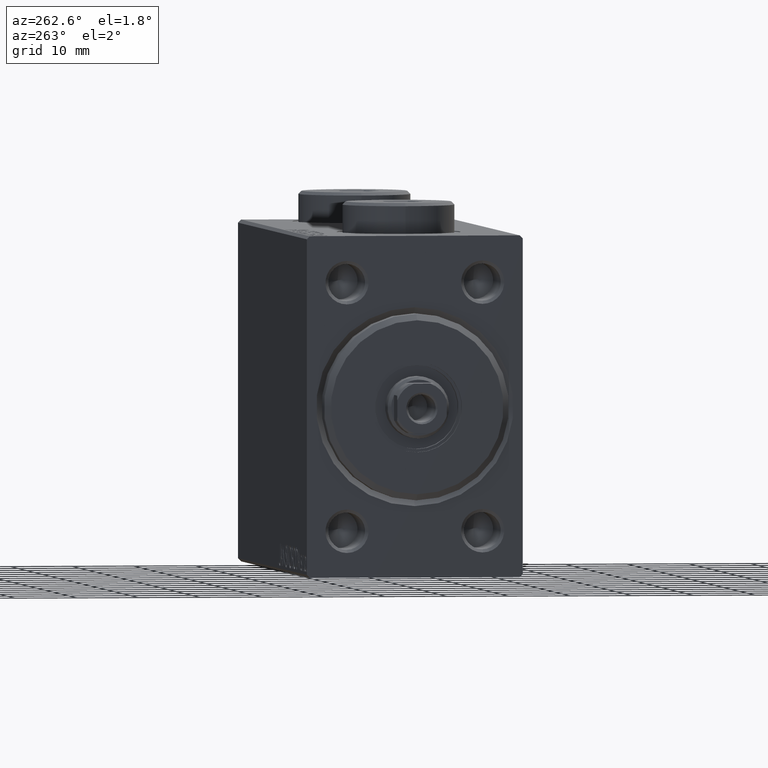
[diagram: clean part render]
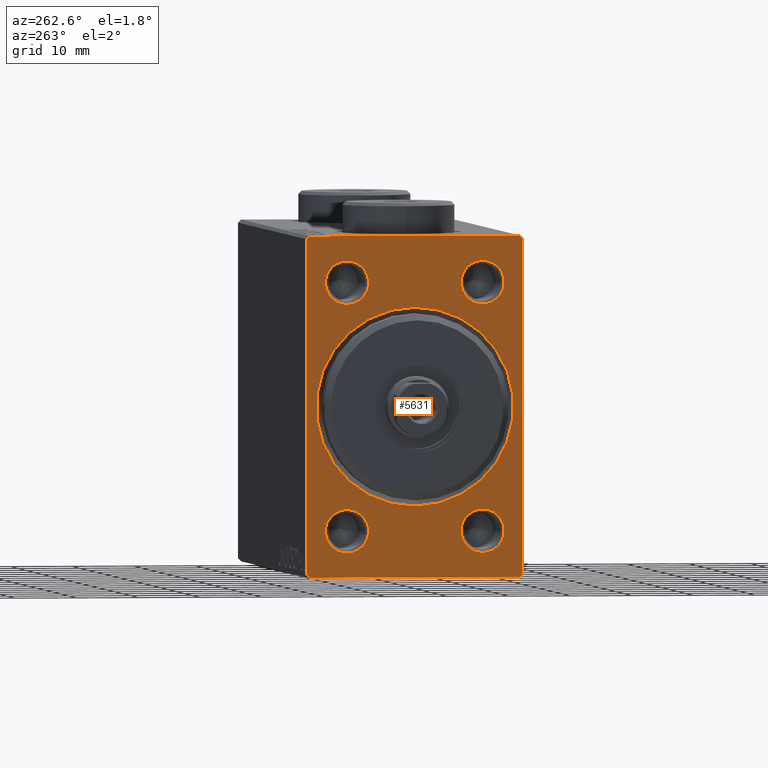
[diagram: same view with one face highlighted and labeled with its STEP entity id]
A machine part, auxiliary view. The second image highlights one B-rep face of the part: STEP entity #5631.
In plain terms, the highlighted planar face has unit normal (1, 0, 0).
Its self-contained STEP definition (entity closure, byte-faithful):
#11 = VECTOR ( 'NONE', #37102, 1000.000000000000114 ) ;
#359 = CARTESIAN_POINT ( 'NONE',  ( 0.000000000000000000, 16.99999999999999289, -27.50000000000001066 ) ) ;
#646 = EDGE_CURVE ( 'NONE', #43901, #34689, #13228, .T. ) ;
#683 = DIRECTION ( 'NONE',  ( 1.000000000000000000, 0.000000000000000000, 0.000000000000000000 ) ) ;
#1106 = ORIENTED_EDGE ( 'NONE', *, *, #14245, .T. ) ;
#1119 = DIRECTION ( 'NONE',  ( -0.000000000000000000, -0.7071067811865474617, 0.7071067811865474617 ) ) ;
#2236 = DIRECTION ( 'NONE',  ( 0.000000000000000000, 0.000000000000000000, -1.000000000000000000 ) ) ;
#2260 = VECTOR ( 'NONE', #13342, 1000.000000000000000 ) ;
#2448 = AXIS2_PLACEMENT_3D ( 'NONE', #16591, #30635, #2755 ) ;
#2755 = DIRECTION ( 'NONE',  ( 0.000000000000000000, 0.000000000000000000, -1.000000000000000000 ) ) ;
#3011 = CIRCLE ( 'NONE', #30243, 3.500000000000003109 ) ;
#3281 = EDGE_CURVE ( 'NONE', #16516, #6691, #12670, .T. ) ;
#3431 = ORIENTED_EDGE ( 'NONE', *, *, #20932, .T. ) ;
#3784 = DIRECTION ( 'NONE',  ( 0.000000000000000000, 0.000000000000000000, -1.000000000000000000 ) ) ;
#3795 = VECTOR ( 'NONE', #1119, 1000.000000000000114 ) ;
#4059 = EDGE_CURVE ( 'NONE', #37558, #14920, #3011, .T. ) ;
#4092 = ORIENTED_EDGE ( 'NONE', *, *, #3281, .F. ) ;
#4200 = DIRECTION ( 'NONE',  ( 0.000000000000000000, -1.000000000000000000, -1.982541115402065356E-16 ) ) ;
#4403 = ORIENTED_EDGE ( 'NONE', *, *, #23077, .T. ) ;
#4577 = CARTESIAN_POINT ( 'NONE',  ( 0.000000000000000000, -16.99999999999997868, -27.50000000000000711 ) ) ;
#5053 = EDGE_CURVE ( 'NONE', #34689, #43901, #6006, .T. ) ;
#5509 = VECTOR ( 'NONE', #4200, 1000.000000000000000 ) ;
#5631 = ADVANCED_FACE ( 'NONE', ( #6506, #20802, #37590, #44945, #13448, #27269 ), #24258, .F. ) ;
#6006 = CIRCLE ( 'NONE', #28092, 3.500000000000003109 ) ;
#6305 = DIRECTION ( 'NONE',  ( 0.000000000000000000, 0.000000000000000000, -1.000000000000000000 ) ) ;
#6440 = EDGE_CURVE ( 'NONE', #15381, #44623, #34680, .T. ) ;
#6506 = FACE_BOUND ( 'NONE', #21857, .T. ) ;
#6691 = VERTEX_POINT ( 'NONE', #43993 ) ;
#6898 = VERTEX_POINT ( 'NONE', #9403 ) ;
#7950 = AXIS2_PLACEMENT_3D ( 'NONE', #36327, #19753, #2236 ) ;
#8102 = CARTESIAN_POINT ( 'NONE',  ( 0.000000000000000000, -17.49999999999999645, 27.49999999999998579 ) ) ;
#8302 = DIRECTION ( 'NONE',  ( -0.000000000000000000, 0.7071067811865474617, 0.7071067811865474617 ) ) ;
#8775 = CARTESIAN_POINT ( 'NONE',  ( 0.000000000000000000, -11.00000000000000533, 16.50000000000000355 ) ) ;
#8803 = AXIS2_PLACEMENT_3D ( 'NONE', #12560, #23153, #6305 ) ;
#8944 = EDGE_CURVE ( 'NONE', #25537, #20317, #22101, .T. ) ;
#9030 = LINE ( 'NONE', #23099, #11 ) ;
#9089 = ORIENTED_EDGE ( 'NONE', *, *, #25800, .T. ) ;
#9403 = CARTESIAN_POINT ( 'NONE',  ( 0.000000000000000000, -16.99999999999997868, 27.49999999999998579 ) ) ;
#10078 = AXIS2_PLACEMENT_3D ( 'NONE', #20118, #34128, #13661 ) ;
#10892 = LINE ( 'NONE', #25412, #5509 ) ;
#10898 = VERTEX_POINT ( 'NONE', #11928 ) ;
#11023 = CARTESIAN_POINT ( 'NONE',  ( 0.000000000000000000, -17.49999999999999645, 26.99999999999997158 ) ) ;
#11344 = DIRECTION ( 'NONE',  ( 0.000000000000000000, 1.000000000000000000, -9.912705577010325549E-17 ) ) ;
#11368 = EDGE_CURVE ( 'NONE', #30935, #6691, #18489, .T. ) ;
#11392 = DIRECTION ( 'NONE',  ( 1.000000000000000000, 0.000000000000000000, 0.000000000000000000 ) ) ;
#11405 = EDGE_CURVE ( 'NONE', #25537, #18526, #29560, .T. ) ;
#11504 = CIRCLE ( 'NONE', #21029, 3.500000000000003109 ) ;
#11928 = CARTESIAN_POINT ( 'NONE',  ( 0.000000000000000000, 11.00000000000000178, 16.50000000000000355 ) ) ;
#12036 = VERTEX_POINT ( 'NONE', #31348 ) ;
#12500 = CIRCLE ( 'NONE', #8803, 16.00000000000000000 ) ;
#12560 = CARTESIAN_POINT ( 'NONE',  ( 0.000000000000000000, 0.000000000000000000, 0.000000000000000000 ) ) ;
#12670 = LINE ( 'NONE', #30163, #2260 ) ;
#13228 = CIRCLE ( 'NONE', #15484, 3.500000000000003109 ) ;
#13342 = DIRECTION ( 'NONE',  ( 0.000000000000000000, -1.261617073437677752E-16, 1.000000000000000000 ) ) ;
#13448 = FACE_BOUND ( 'NONE', #24237, .T. ) ;
#13548 = EDGE_LOOP ( 'NONE', ( #4403, #40969 ) ) ;
#13559 = ORIENTED_EDGE ( 'NONE', *, *, #17268, .F. ) ;
#13661 = DIRECTION ( 'NONE',  ( 0.000000000000000000, 0.000000000000000000, -1.000000000000000000 ) ) ;
#14245 = EDGE_CURVE ( 'NONE', #28995, #17581, #16437, .T. ) ;
#14920 = VERTEX_POINT ( 'NONE', #35137 ) ;
#14982 = CARTESIAN_POINT ( 'NONE',  ( 0.000000000000000000, 11.00000000000000178, -20.00000000000000000 ) ) ;
#15381 = VERTEX_POINT ( 'NONE', #16434 ) ;
#15484 = AXIS2_PLACEMENT_3D ( 'NONE', #42908, #11392, #45450 ) ;
#15514 = DIRECTION ( 'NONE',  ( 0.000000000000000000, 0.000000000000000000, -1.000000000000000000 ) ) ;
#15671 = ORIENTED_EDGE ( 'NONE', *, *, #646, .T. ) ;
#15683 = VECTOR ( 'NONE', #11344, 1000.000000000000000 ) ;
#15787 = ORIENTED_EDGE ( 'NONE', *, *, #11368, .T. ) ;
#16138 = CARTESIAN_POINT ( 'NONE',  ( 0.000000000000000000, -17.49999999999999645, 26.99999999999997158 ) ) ;
#16202 = CARTESIAN_POINT ( 'NONE',  ( 0.000000000000000000, 0.000000000000000000, 16.00000000000000000 ) ) ;
#16377 = VECTOR ( 'NONE', #32296, 1000.000000000000114 ) ;
#16434 = CARTESIAN_POINT ( 'NONE',  ( 0.000000000000000000, 1.959434878635765131E-15, -16.00000000000000000 ) ) ;
#16437 = CIRCLE ( 'NONE', #2448, 3.500000000000003109 ) ;
#16516 = VERTEX_POINT ( 'NONE', #19830 ) ;
#16591 = CARTESIAN_POINT ( 'NONE',  ( 0.000000000000000000, -11.00000000000000533, -20.00000000000000000 ) ) ;
#16710 = CIRCLE ( 'NONE', #10078, 3.500000000000003109 ) ;
#17039 = DIRECTION ( 'NONE',  ( 1.000000000000000000, 0.000000000000000000, 0.000000000000000000 ) ) ;
#17130 = EDGE_CURVE ( 'NONE', #30935, #6898, #10892, .T. ) ;
#17268 = EDGE_CURVE ( 'NONE', #26027, #20317, #39640, .T. ) ;
#17581 = VERTEX_POINT ( 'NONE', #26663 ) ;
#18302 = CARTESIAN_POINT ( 'NONE',  ( 0.000000000000000000, 11.00000000000000178, -20.00000000000000000 ) ) ;
#18489 = LINE ( 'NONE', #25185, #16377 ) ;
#18526 = VERTEX_POINT ( 'NONE', #359 ) ;
#19253 = ORIENTED_EDGE ( 'NONE', *, *, #5053, .T. ) ;
#19753 = DIRECTION ( 'NONE',  ( 1.000000000000000000, 0.000000000000000000, 0.000000000000000000 ) ) ;
#19830 = CARTESIAN_POINT ( 'NONE',  ( 0.000000000000000000, 17.50000000000000711, -26.99999999999999645 ) ) ;
#20118 = CARTESIAN_POINT ( 'NONE',  ( 0.000000000000000000, -11.00000000000000533, -20.00000000000000000 ) ) ;
#20310 = CARTESIAN_POINT ( 'NONE',  ( 0.000000000000000000, -16.99999999999997868, -27.50000000000000711 ) ) ;
#20317 = VERTEX_POINT ( 'NONE', #24414 ) ;
#20802 = FACE_BOUND ( 'NONE', #25995, .T. ) ;
#20932 = EDGE_CURVE ( 'NONE', #14920, #37558, #11504, .T. ) ;
#21029 = AXIS2_PLACEMENT_3D ( 'NONE', #18302, #45448, #3784 ) ;
#21857 = EDGE_LOOP ( 'NONE', ( #27988, #23454 ) ) ;
#22101 = LINE ( 'NONE', #4577, #3795 ) ;
#22955 = CARTESIAN_POINT ( 'NONE',  ( 0.000000000000000000, 11.00000000000000178, -16.49999999999999645 ) ) ;
#23077 = EDGE_CURVE ( 'NONE', #12036, #10898, #40167, .T. ) ;
#23099 = CARTESIAN_POINT ( 'NONE',  ( 0.000000000000000000, 17.50000000000000711, -26.99999999999999645 ) ) ;
#23153 = DIRECTION ( 'NONE',  ( 1.000000000000000000, 0.000000000000000000, 0.000000000000000000 ) ) ;
#23201 = CARTESIAN_POINT ( 'NONE',  ( 0.000000000000000000, -11.00000000000000533, -23.50000000000000355 ) ) ;
#23454 = ORIENTED_EDGE ( 'NONE', *, *, #6440, .T. ) ;
#23803 = DIRECTION ( 'NONE',  ( 1.000000000000000000, 0.000000000000000000, 0.000000000000000000 ) ) ;
#23945 = CARTESIAN_POINT ( 'NONE',  ( 0.000000000000000000, 11.00000000000000178, 20.00000000000000711 ) ) ;
#24237 = EDGE_LOOP ( 'NONE', ( #41452, #3431 ) ) ;
#24258 = PLANE ( 'NONE',  #31759 ) ;
#24414 = CARTESIAN_POINT ( 'NONE',  ( 0.000000000000000000, -17.49999999999999645, -26.99999999999999289 ) ) ;
#24634 = EDGE_CURVE ( 'NONE', #17581, #28995, #16710, .T. ) ;
#25119 = DIRECTION ( 'NONE',  ( 0.000000000000000000, 0.000000000000000000, -1.000000000000000000 ) ) ;
#25185 = CARTESIAN_POINT ( 'NONE',  ( 0.000000000000000000, 17.00000000000000000, 27.49999999999999289 ) ) ;
#25412 = CARTESIAN_POINT ( 'NONE',  ( 0.000000000000000000, 17.50000000000000000, 27.49999999999999289 ) ) ;
#25537 = VERTEX_POINT ( 'NONE', #20310 ) ;
#25800 = EDGE_CURVE ( 'NONE', #26027, #6898, #33616, .T. ) ;
#25995 = EDGE_LOOP ( 'NONE', ( #26632, #1106 ) ) ;
#26027 = VERTEX_POINT ( 'NONE', #11023 ) ;
#26632 = ORIENTED_EDGE ( 'NONE', *, *, #24634, .T. ) ;
#26663 = CARTESIAN_POINT ( 'NONE',  ( 0.000000000000000000, -11.00000000000000533, -16.49999999999999645 ) ) ;
#27269 = FACE_OUTER_BOUND ( 'NONE', #40840, .T. ) ;
#27839 = CIRCLE ( 'NONE', #7950, 3.500000000000003109 ) ;
#27988 = ORIENTED_EDGE ( 'NONE', *, *, #41038, .T. ) ;
#28092 = AXIS2_PLACEMENT_3D ( 'NONE', #32697, #683, #29719 ) ;
#28401 = VECTOR ( 'NONE', #8302, 1000.000000000000114 ) ;
#28995 = VERTEX_POINT ( 'NONE', #23201 ) ;
#29560 = LINE ( 'NONE', #33214, #15683 ) ;
#29719 = DIRECTION ( 'NONE',  ( 0.000000000000000000, 0.000000000000000000, -1.000000000000000000 ) ) ;
#30163 = CARTESIAN_POINT ( 'NONE',  ( 0.000000000000000000, 17.50000000000000711, -27.50000000000001066 ) ) ;
#30243 = AXIS2_PLACEMENT_3D ( 'NONE', #14982, #32689, #25119 ) ;
#30514 = ORIENTED_EDGE ( 'NONE', *, *, #11405, .F. ) ;
#30635 = DIRECTION ( 'NONE',  ( 1.000000000000000000, 0.000000000000000000, 0.000000000000000000 ) ) ;
#30719 = CARTESIAN_POINT ( 'NONE',  ( 0.000000000000000000, 0.000000000000000000, 0.000000000000000000 ) ) ;
#30722 = DIRECTION ( 'NONE',  ( 0.000000000000000000, 0.000000000000000000, -1.000000000000000000 ) ) ;
#30935 = VERTEX_POINT ( 'NONE', #35345 ) ;
#30944 = DIRECTION ( 'NONE',  ( 0.000000000000000000, 0.000000000000000000, -1.000000000000000000 ) ) ;
#31348 = CARTESIAN_POINT ( 'NONE',  ( 0.000000000000000000, 11.00000000000000178, 23.50000000000001066 ) ) ;
#31759 = AXIS2_PLACEMENT_3D ( 'NONE', #30719, #37815, #30944 ) ;
#31969 = EDGE_CURVE ( 'NONE', #10898, #12036, #27839, .T. ) ;
#32296 = DIRECTION ( 'NONE',  ( -0.000000000000000000, 0.7071067811865500152, -0.7071067811865451302 ) ) ;
#32455 = EDGE_LOOP ( 'NONE', ( #19253, #15671 ) ) ;
#32512 = AXIS2_PLACEMENT_3D ( 'NONE', #44496, #23803, #30722 ) ;
#32689 = DIRECTION ( 'NONE',  ( 1.000000000000000000, 0.000000000000000000, 0.000000000000000000 ) ) ;
#32697 = CARTESIAN_POINT ( 'NONE',  ( 0.000000000000000000, -11.00000000000000533, 20.00000000000000711 ) ) ;
#33014 = CARTESIAN_POINT ( 'NONE',  ( 0.000000000000000000, -11.00000000000000533, 23.50000000000001066 ) ) ;
#33214 = CARTESIAN_POINT ( 'NONE',  ( 0.000000000000000000, -17.49999999999999645, -27.50000000000000711 ) ) ;
#33616 = LINE ( 'NONE', #16138, #28401 ) ;
#34128 = DIRECTION ( 'NONE',  ( 1.000000000000000000, 0.000000000000000000, 0.000000000000000000 ) ) ;
#34276 = AXIS2_PLACEMENT_3D ( 'NONE', #23945, #17039, #38175 ) ;
#34680 = CIRCLE ( 'NONE', #32512, 16.00000000000000000 ) ;
#34689 = VERTEX_POINT ( 'NONE', #33014 ) ;
#34747 = ORIENTED_EDGE ( 'NONE', *, *, #17130, .F. ) ;
#35137 = CARTESIAN_POINT ( 'NONE',  ( 0.000000000000000000, 11.00000000000000178, -23.50000000000000355 ) ) ;
#35345 = CARTESIAN_POINT ( 'NONE',  ( 0.000000000000000000, 17.00000000000000000, 27.49999999999999289 ) ) ;
#36327 = CARTESIAN_POINT ( 'NONE',  ( 0.000000000000000000, 11.00000000000000178, 20.00000000000000711 ) ) ;
#37102 = DIRECTION ( 'NONE',  ( 0.000000000000000000, -0.7071067811865474617, -0.7071067811865474617 ) ) ;
#37226 = ORIENTED_EDGE ( 'NONE', *, *, #41528, .T. ) ;
#37558 = VERTEX_POINT ( 'NONE', #22955 ) ;
#37590 = FACE_BOUND ( 'NONE', #32455, .T. ) ;
#37815 = DIRECTION ( 'NONE',  ( 1.000000000000000000, 0.000000000000000000, 0.000000000000000000 ) ) ;
#38175 = DIRECTION ( 'NONE',  ( 0.000000000000000000, 0.000000000000000000, -1.000000000000000000 ) ) ;
#39640 = LINE ( 'NONE', #8102, #42957 ) ;
#40167 = CIRCLE ( 'NONE', #34276, 3.500000000000003109 ) ;
#40840 = EDGE_LOOP ( 'NONE', ( #13559, #9089, #34747, #15787, #4092, #37226, #30514, #40888 ) ) ;
#40888 = ORIENTED_EDGE ( 'NONE', *, *, #8944, .T. ) ;
#40969 = ORIENTED_EDGE ( 'NONE', *, *, #31969, .T. ) ;
#41038 = EDGE_CURVE ( 'NONE', #44623, #15381, #12500, .T. ) ;
#41452 = ORIENTED_EDGE ( 'NONE', *, *, #4059, .T. ) ;
#41528 = EDGE_CURVE ( 'NONE', #16516, #18526, #9030, .T. ) ;
#42908 = CARTESIAN_POINT ( 'NONE',  ( 0.000000000000000000, -11.00000000000000533, 20.00000000000000711 ) ) ;
#42957 = VECTOR ( 'NONE', #15514, 1000.000000000000000 ) ;
#43901 = VERTEX_POINT ( 'NONE', #8775 ) ;
#43993 = CARTESIAN_POINT ( 'NONE',  ( 0.000000000000000000, 17.50000000000000000, 26.99999999999999645 ) ) ;
#44496 = CARTESIAN_POINT ( 'NONE',  ( 0.000000000000000000, 0.000000000000000000, 0.000000000000000000 ) ) ;
#44623 = VERTEX_POINT ( 'NONE', #16202 ) ;
#44945 = FACE_BOUND ( 'NONE', #13548, .T. ) ;
#45448 = DIRECTION ( 'NONE',  ( 1.000000000000000000, 0.000000000000000000, 0.000000000000000000 ) ) ;
#45450 = DIRECTION ( 'NONE',  ( 0.000000000000000000, 0.000000000000000000, -1.000000000000000000 ) ) ;